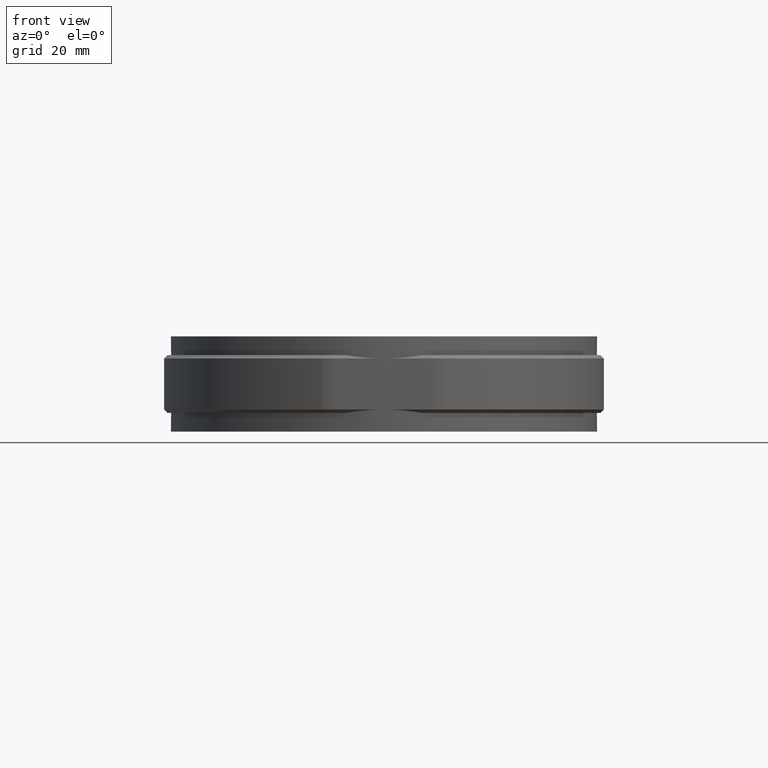
[diagram: clean part render]
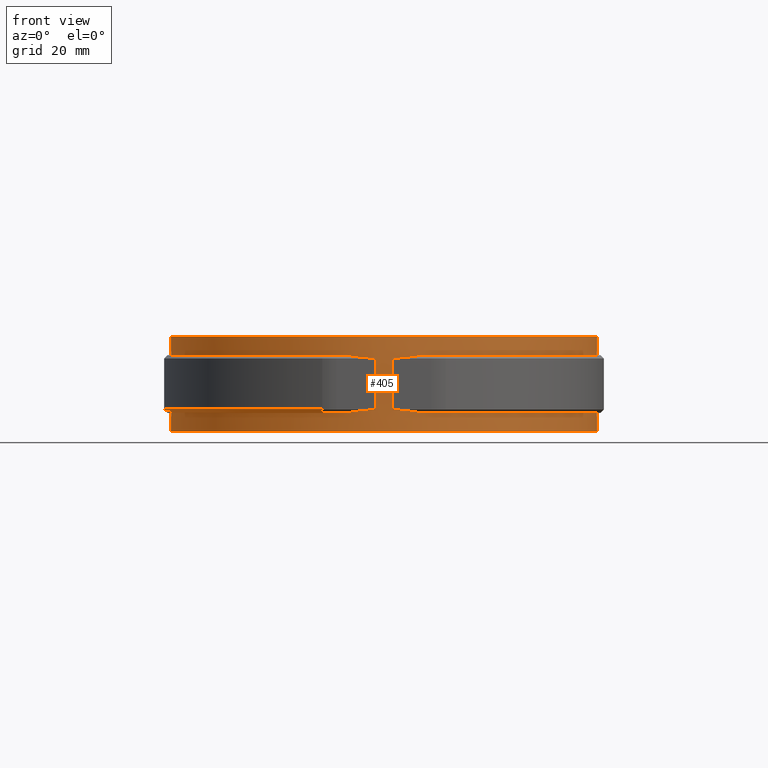
[diagram: same view with one face highlighted and labeled with its STEP entity id]
A machine part, front view. The second image highlights one B-rep face of the part: STEP entity #405.
In plain terms, the highlighted cylindrical surface (partial cylindrical patch) has radius 62.65 mm, axis along (0, 0, 1).
Its self-contained STEP definition (entity closure, byte-faithful):
#405 = ADVANCED_FACE( '', ( #701 ), #702, .T. );
#701 = FACE_OUTER_BOUND( '', #1552, .T. );
#702 = CYLINDRICAL_SURFACE( '', #1553, 62.6500000000000 );
#1552 = EDGE_LOOP( '', ( #3120, #3121, #3122, #3123, #3124, #3125, #3126, #3127, #3128, #3129, #3130, #3131, #3132, #3133, #3134, #3135 ) );
#1553 = AXIS2_PLACEMENT_3D( '', #3136, #3137, #3138 );
#3120 = ORIENTED_EDGE( '', *, *, #4175, .T. );
#3121 = ORIENTED_EDGE( '', *, *, #4147, .T. );
#3122 = ORIENTED_EDGE( '', *, *, #4048, .T. );
#3123 = ORIENTED_EDGE( '', *, *, #4143, .F. );
#3124 = ORIENTED_EDGE( '', *, *, #4176, .T. );
#3125 = ORIENTED_EDGE( '', *, *, #4150, .F. );
#3126 = ORIENTED_EDGE( '', *, *, #4177, .T. );
#3127 = ORIENTED_EDGE( '', *, *, #4133, .F. );
#3128 = ORIENTED_EDGE( '', *, *, #4178, .F. );
#3129 = ORIENTED_EDGE( '', *, *, #4179, .F. );
#3130 = ORIENTED_EDGE( '', *, *, #4043, .T. );
#3131 = ORIENTED_EDGE( '', *, *, #4113, .F. );
#3132 = ORIENTED_EDGE( '', *, *, #4180, .T. );
#3133 = ORIENTED_EDGE( '', *, *, #4181, .T. );
#3134 = ORIENTED_EDGE( '', *, *, #4182, .F. );
#3135 = ORIENTED_EDGE( '', *, *, #4125, .T. );
#3136 = CARTESIAN_POINT( '', ( 6.93889390390723E-015, 5.55111512312578E-014, -14.0000000000000 ) );
#3137 = DIRECTION( '', ( 0.000000000000000, 0.000000000000000, 1.00000000000000 ) );
#3138 = DIRECTION( '', ( -0.112630732099760, -0.993636914665851, 0.000000000000000 ) );
#4043 = EDGE_CURVE( '', #4646, #4644, #4647, .F. );
#4048 = EDGE_CURVE( '', #4656, #4654, #4657, .T. );
#4113 = EDGE_CURVE( '', #4772, #4644, #4774, .F. );
#4125 = EDGE_CURVE( '', #4791, #4789, #4792, .F. );
#4133 = EDGE_CURVE( '', #4805, #4807, #4808, .F. );
#4143 = EDGE_CURVE( '', #4820, #4654, #4822, .T. );
#4147 = EDGE_CURVE( '', #4827, #4656, #4828, .F. );
#4150 = EDGE_CURVE( '', #4832, #4833, #4834, .F. );
#4175 = EDGE_CURVE( '', #4789, #4827, #4870, .F. );
#4176 = EDGE_CURVE( '', #4820, #4833, #4871, .F. );
#4177 = EDGE_CURVE( '', #4832, #4807, #4872, .F. );
#4178 = EDGE_CURVE( '', #4873, #4805, #4874, .F. );
#4179 = EDGE_CURVE( '', #4646, #4873, #4875, .F. );
#4180 = EDGE_CURVE( '', #4772, #4876, #4877, .T. );
#4181 = EDGE_CURVE( '', #4876, #4878, #4879, .F. );
#4182 = EDGE_CURVE( '', #4791, #4878, #4880, .F. );
#4644 = VERTEX_POINT( '', #6641 );
#4646 = VERTEX_POINT( '', #6644 );
#4647 = ELLIPSE( '', #6645, 88.6004796826745, 62.6500000000000 );
#4654 = VERTEX_POINT( '', #6655 );
#4656 = VERTEX_POINT( '', #6658 );
#4657 = ELLIPSE( '', #6659, 88.6004796826743, 62.6500000000000 );
#4772 = VERTEX_POINT( '', #7337 );
#4774 = LINE( '', #7340, #7341 );
#4789 = VERTEX_POINT( '', #7369 );
#4791 = VERTEX_POINT( '', #7372 );
#4792 = CIRCLE( '', #7373, 62.6500000000000 );
#4805 = VERTEX_POINT( '', #7391 );
#4807 = VERTEX_POINT( '', #7394 );
#4808 = CIRCLE( '', #7395, 62.6500000000000 );
#4820 = VERTEX_POINT( '', #7414 );
#4822 = LINE( '', #7417, #7418 );
#4827 = VERTEX_POINT( '', #7423 );
#4828 = CIRCLE( '', #7424, 62.6500000000000 );
#4832 = VERTEX_POINT( '', #7429 );
#4833 = VERTEX_POINT( '', #7430 );
#4834 = CIRCLE( '', #7431, 62.6500000000000 );
#4870 = LINE( '', #7501, #7502 );
#4871 = ELLIPSE( '', #7503, 88.6004796826745, 62.6500000000000 );
#4872 = LINE( '', #7504, #7505 );
#4873 = VERTEX_POINT( '', #7506 );
#4874 = LINE( '', #7507, #7508 );
#4875 = CIRCLE( '', #7509, 62.6500000000000 );
#4876 = VERTEX_POINT( '', #7510 );
#4877 = ELLIPSE( '', #7511, 88.6004796826743, 62.6500000000000 );
#4878 = VERTEX_POINT( '', #7512 );
#4879 = CIRCLE( '', #7513, 62.6500000000000 );
#4880 = LINE( '', #7514, #7515 );
#6641 = CARTESIAN_POINT( '', ( -2.50000000000000, -62.6000998401759, 7.54990015982407 ) );
#6644 = CARTESIAN_POINT( '', ( -11.1489909857347, -61.6500000000000, 8.50000000000000 ) );
#6645 = AXIS2_PLACEMENT_3D( '', #8216, #8217, #8218 );
#6655 = CARTESIAN_POINT( '', ( 2.50000000000000, -62.6000998401759, -7.54990015982408 ) );
#6658 = CARTESIAN_POINT( '', ( 11.1489909857346, -61.6500000000000, -8.50000000000000 ) );
#6659 = AXIS2_PLACEMENT_3D( '', #8223, #8224, #8225 );
#7337 = CARTESIAN_POINT( '', ( -2.50000000000000, -62.6000998401759, -7.54990015982407 ) );
#7340 = CARTESIAN_POINT( '', ( -2.50000000000000, -62.6000998401759, -14.0000000000000 ) );
#7341 = VECTOR( '', #8305, 1000.00000000000 );
#7369 = CARTESIAN_POINT( '', ( 6.00000000000001, 62.3620277091758, -14.0000000000000 ) );
#7372 = CARTESIAN_POINT( '', ( -6.00000000000000, 62.3620277091758, -14.0000000000000 ) );
#7373 = AXIS2_PLACEMENT_3D( '', #8316, #8317, #8318 );
#7391 = CARTESIAN_POINT( '', ( -6.00000000000000, 62.3620277091758, 14.0000000000000 ) );
#7394 = CARTESIAN_POINT( '', ( 6.00000000000001, 62.3620277091758, 14.0000000000000 ) );
#7395 = AXIS2_PLACEMENT_3D( '', #8328, #8329, #8330 );
#7414 = CARTESIAN_POINT( '', ( 2.50000000000000, -62.6000998401759, 7.54990015982406 ) );
#7417 = CARTESIAN_POINT( '', ( 2.50000000000000, -62.6000998401759, -14.0000000000000 ) );
#7418 = VECTOR( '', #8342, 1000.00000000000 );
#7423 = CARTESIAN_POINT( '', ( 6.00000000000001, 62.3620277091758, -8.50000000000000 ) );
#7424 = AXIS2_PLACEMENT_3D( '', #8352, #8353, #8354 );
#7429 = CARTESIAN_POINT( '', ( 6.00000000000001, 62.3620277091758, 8.50000000000000 ) );
#7430 = CARTESIAN_POINT( '', ( 11.1489909857347, -61.6500000000000, 8.50000000000000 ) );
#7431 = AXIS2_PLACEMENT_3D( '', #8359, #8360, #8361 );
#7501 = CARTESIAN_POINT( '', ( 6.00000000000001, 62.3620277091758, -14.0000000000000 ) );
#7502 = VECTOR( '', #8399, 1000.00000000000 );
#7503 = AXIS2_PLACEMENT_3D( '', #8400, #8401, #8402 );
#7504 = CARTESIAN_POINT( '', ( 6.00000000000001, 62.3620277091758, -14.0000000000000 ) );
#7505 = VECTOR( '', #8403, 1000.00000000000 );
#7506 = CARTESIAN_POINT( '', ( -6.00000000000000, 62.3620277091758, 8.50000000000000 ) );
#7507 = CARTESIAN_POINT( '', ( -6.00000000000000, 62.3620277091758, -14.0000000000000 ) );
#7508 = VECTOR( '', #8404, 1000.00000000000 );
#7509 = AXIS2_PLACEMENT_3D( '', #8405, #8406, #8407 );
#7510 = CARTESIAN_POINT( '', ( -11.1489909857347, -61.6500000000000, -8.50000000000000 ) );
#7511 = AXIS2_PLACEMENT_3D( '', #8408, #8409, #8410 );
#7512 = CARTESIAN_POINT( '', ( -6.00000000000000, 62.3620277091758, -8.50000000000000 ) );
#7513 = AXIS2_PLACEMENT_3D( '', #8411, #8412, #8413 );
#7514 = CARTESIAN_POINT( '', ( -6.00000000000000, 62.3620277091758, -14.0000000000000 ) );
#7515 = VECTOR( '', #8414, 1000.00000000000 );
#8216 = CARTESIAN_POINT( '', ( 6.93889390390723E-015, 5.55111512312578E-014, 70.1500000000002 ) );
#8217 = DIRECTION( '', ( -9.81307786677359E-018, 0.707106781186548, -0.707106781186547 ) );
#8218 = DIRECTION( '', ( 9.81307786677358E-018, -0.707106781186547, -0.707106781186548 ) );
#8223 = CARTESIAN_POINT( '', ( 6.93889390390723E-015, 5.55111512312578E-014, -70.1500000000000 ) );
#8224 = DIRECTION( '', ( -9.81307786677359E-018, -0.707106781186547, -0.707106781186548 ) );
#8225 = DIRECTION( '', ( 9.81307786677360E-018, 0.707106781186548, -0.707106781186547 ) );
#8305 = DIRECTION( '', ( 0.000000000000000, 0.000000000000000, -1.00000000000000 ) );
#8316 = CARTESIAN_POINT( '', ( 6.93889390390723E-015, 5.55111512312578E-014, -14.0000000000000 ) );
#8317 = DIRECTION( '', ( 0.000000000000000, 0.000000000000000, -1.00000000000000 ) );
#8318 = DIRECTION( '', ( -1.00000000000000, 0.000000000000000, 0.000000000000000 ) );
#8328 = CARTESIAN_POINT( '', ( 6.93889390390723E-015, 5.55111512312578E-014, 14.0000000000000 ) );
#8329 = DIRECTION( '', ( 0.000000000000000, 0.000000000000000, -1.00000000000000 ) );
#8330 = DIRECTION( '', ( -1.00000000000000, 0.000000000000000, 0.000000000000000 ) );
#8342 = DIRECTION( '', ( 0.000000000000000, 0.000000000000000, -1.00000000000000 ) );
#8352 = CARTESIAN_POINT( '', ( 6.93889390390723E-015, 5.55111512312578E-014, -8.50000000000000 ) );
#8353 = DIRECTION( '', ( 0.000000000000000, 0.000000000000000, 1.00000000000000 ) );
#8354 = DIRECTION( '', ( 1.00000000000000, 0.000000000000000, 0.000000000000000 ) );
#8359 = CARTESIAN_POINT( '', ( 6.93889390390723E-015, 5.55111512312578E-014, 8.50000000000000 ) );
#8360 = DIRECTION( '', ( 0.000000000000000, 0.000000000000000, 1.00000000000000 ) );
#8361 = DIRECTION( '', ( 1.00000000000000, 0.000000000000000, 0.000000000000000 ) );
#8399 = DIRECTION( '', ( 0.000000000000000, 0.000000000000000, -1.00000000000000 ) );
#8400 = CARTESIAN_POINT( '', ( 6.93889390390723E-015, 5.55111512312578E-014, 70.1500000000001 ) );
#8401 = DIRECTION( '', ( 9.81307786677359E-018, 0.707106781186548, -0.707106781186547 ) );
#8402 = DIRECTION( '', ( -9.81307786677358E-018, -0.707106781186547, -0.707106781186548 ) );
#8403 = DIRECTION( '', ( 0.000000000000000, 0.000000000000000, -1.00000000000000 ) );
#8404 = DIRECTION( '', ( 0.000000000000000, 0.000000000000000, -1.00000000000000 ) );
#8405 = CARTESIAN_POINT( '', ( 6.93889390390723E-015, 5.55111512312578E-014, 8.50000000000000 ) );
#8406 = DIRECTION( '', ( 0.000000000000000, 0.000000000000000, 1.00000000000000 ) );
#8407 = DIRECTION( '', ( 1.00000000000000, 0.000000000000000, 0.000000000000000 ) );
#8408 = CARTESIAN_POINT( '', ( 6.93889390390723E-015, 5.55111512312578E-014, -70.1499999999999 ) );
#8409 = DIRECTION( '', ( 9.81307786677359E-018, -0.707106781186547, -0.707106781186548 ) );
#8410 = DIRECTION( '', ( -9.81307786677360E-018, 0.707106781186548, -0.707106781186547 ) );
#8411 = CARTESIAN_POINT( '', ( 6.93889390390723E-015, 5.55111512312578E-014, -8.50000000000000 ) );
#8412 = DIRECTION( '', ( 0.000000000000000, 0.000000000000000, 1.00000000000000 ) );
#8413 = DIRECTION( '', ( 1.00000000000000, 0.000000000000000, 0.000000000000000 ) );
#8414 = DIRECTION( '', ( 0.000000000000000, 0.000000000000000, -1.00000000000000 ) );